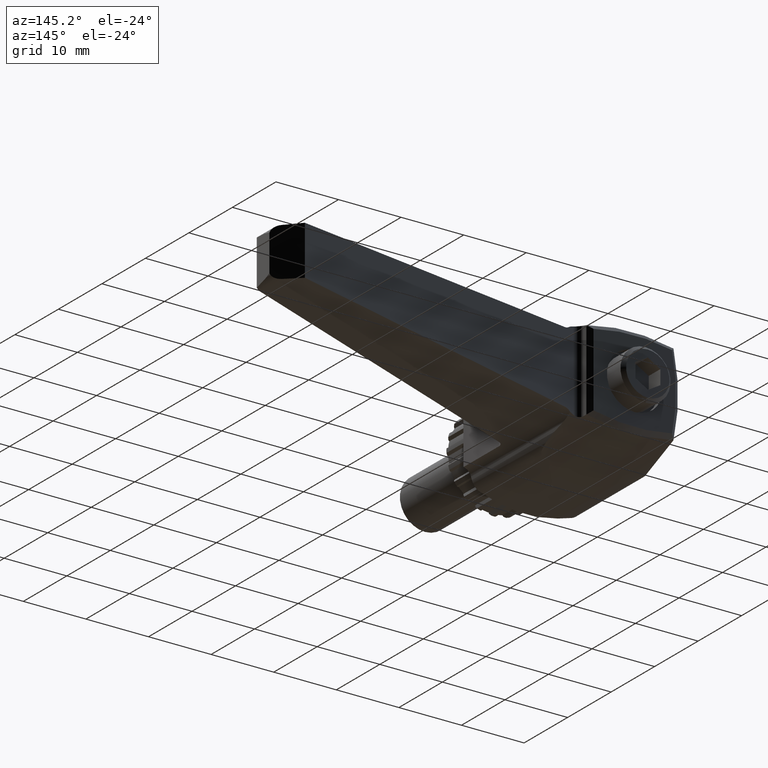
[diagram: clean part render]
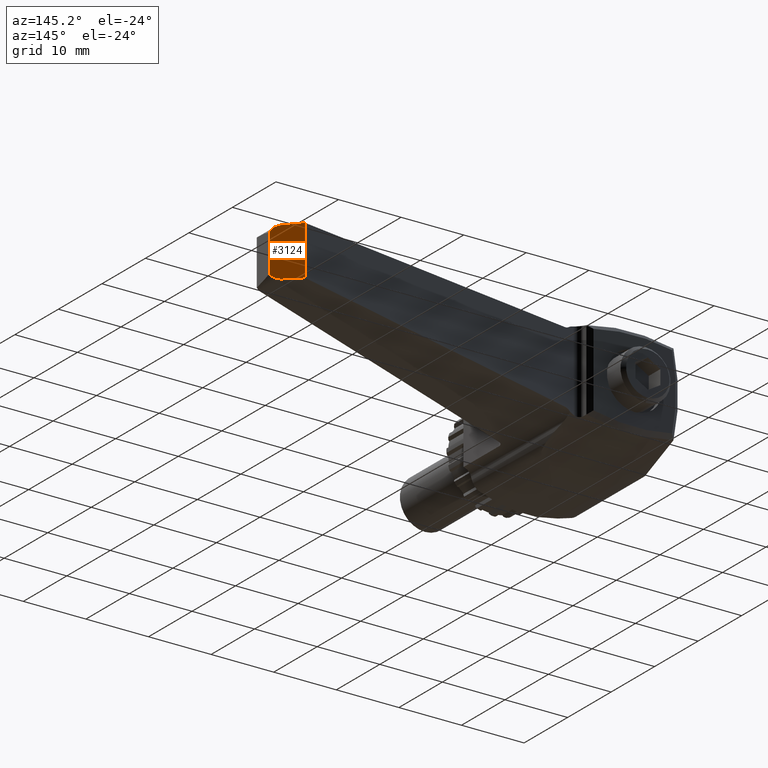
[diagram: same view with one face highlighted and labeled with its STEP entity id]
A machine part, auxiliary view. The second image highlights one B-rep face of the part: STEP entity #3124.
In plain terms, the highlighted planar face has unit normal (-0.7071, -0.7071, 0).
Its self-contained STEP definition (entity closure, byte-faithful):
#24=ELLIPSE('',#3415,1.69705627484773,1.20000000000001);
#25=ELLIPSE('',#3429,1.69705627484769,1.19999999999999);
#407=LINE('',#5307,#648);
#415=LINE('',#5400,#656);
#424=LINE('',#5430,#665);
#439=LINE('',#5528,#680);
#648=VECTOR('',#4182,7.9058744915328);
#656=VECTOR('',#4210,3.12299873261066);
#665=VECTOR('',#4235,3.12299873261075);
#680=VECTOR('',#4322,5.65964877191458);
#839=FACE_OUTER_BOUND('',#1022,.T.);
#1022=EDGE_LOOP('',(#2827,#2828,#2829,#2830,#2831,#2832));
#1453=VERTEX_POINT('',#5304);
#1454=VERTEX_POINT('',#5306);
#1467=VERTEX_POINT('',#5398);
#1474=VERTEX_POINT('',#5429);
#1475=VERTEX_POINT('',#5435);
#1480=VERTEX_POINT('',#5506);
#1883=EDGE_CURVE('',#1453,#1454,#407,.T.);
#1904=EDGE_CURVE('',#1453,#1467,#415,.T.);
#1917=EDGE_CURVE('',#1474,#1454,#424,.T.);
#1921=EDGE_CURVE('',#1467,#1475,#24,.F.);
#1938=EDGE_CURVE('',#1480,#1474,#25,.F.);
#1942=EDGE_CURVE('',#1475,#1480,#439,.T.);
#2827=ORIENTED_EDGE('',*,*,#1938,.T.);
#2828=ORIENTED_EDGE('',*,*,#1917,.T.);
#2829=ORIENTED_EDGE('',*,*,#1883,.F.);
#2830=ORIENTED_EDGE('',*,*,#1904,.T.);
#2831=ORIENTED_EDGE('',*,*,#1921,.T.);
#2832=ORIENTED_EDGE('',*,*,#1942,.T.);
#2941=PLANE('',#3447);
#3124=ADVANCED_FACE('',(#839),#2941,.F.);
#3415=AXIS2_PLACEMENT_3D('',#5437,#4244,#4245);
#3429=AXIS2_PLACEMENT_3D('',#5507,#4283,#4284);
#3447=AXIS2_PLACEMENT_3D('',#5527,#4320,#4321);
#4182=DIRECTION('',(0.,0.,-1.));
#4210=DIRECTION('',(0.706883553788417,-0.706883553788414,-0.025125341130447));
#4235=DIRECTION('',(-0.706883553788415,0.706883553788415,-0.025125341130447));
#4244=DIRECTION('center_axis',(-0.707106781186548,-0.707106781186548,0.));
#4245=DIRECTION('ref_axis',(0.707106781186547,-0.707106781186547,0.));
#4283=DIRECTION('center_axis',(-0.707106781186548,-0.707106781186548,0.));
#4284=DIRECTION('ref_axis',(0.707106781186548,-0.707106781186548,0.));
#4320=DIRECTION('center_axis',(-0.707106781186548,-0.707106781186548,0.));
#4321=DIRECTION('ref_axis',(0.,0.,1.));
#4322=DIRECTION('',(0.,0.,-1.));
#5304=CARTESIAN_POINT('',(59.6450292229372,43.,3.9529372457664));
#5306=CARTESIAN_POINT('',(59.6450292229372,43.,-3.9529372457664));
#5307=CARTESIAN_POINT('',(59.6450292229372,43.,3.9529372457664));
#5398=CARTESIAN_POINT('',(61.8526256655218,40.7924035574155,3.87447083725961));
#5400=CARTESIAN_POINT('',(59.6450292229372,43.,3.9529372457664));
#5429=CARTESIAN_POINT('',(61.8526256655218,40.7924035574154,-3.87447083725961));
#5430=CARTESIAN_POINT('',(61.8526256655218,40.7924035574154,-3.8744708372596));
#5435=CARTESIAN_POINT('',(63.,39.6450292229372,2.82982438595728));
#5437=CARTESIAN_POINT('Origin',(61.81,40.8350292229372,2.67522813762002));
#5506=CARTESIAN_POINT('',(63.,39.6450292229372,-2.8298243859573));
#5507=CARTESIAN_POINT('Origin',(61.81,40.8350292229372,-2.67522813762004));
#5527=CARTESIAN_POINT('Origin',(63.,39.6450292229372,10.001));
#5528=CARTESIAN_POINT('',(63.,39.6450292229372,2.82982438595728));